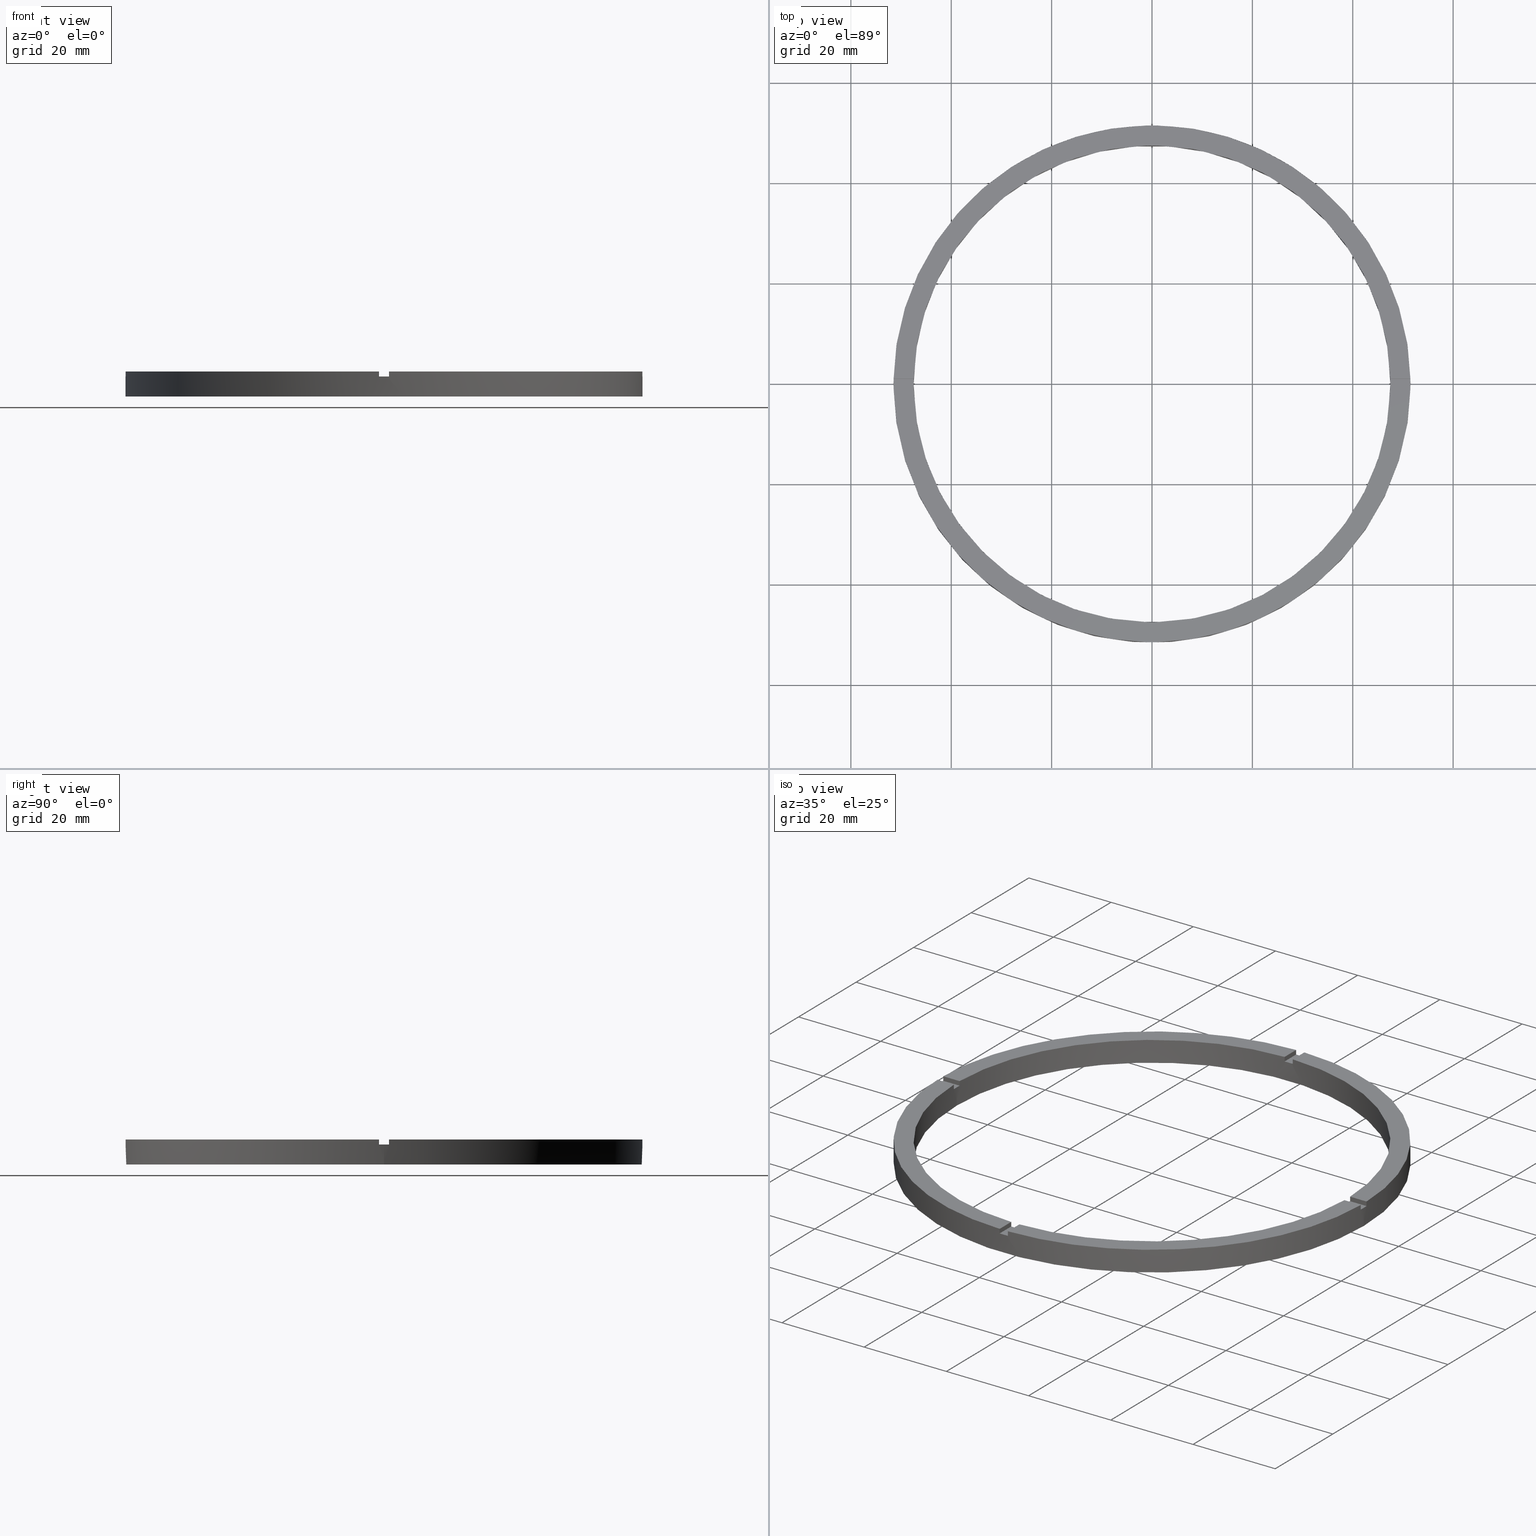
[diagram: canonical four-view strip — front | top / right | iso, engineering-drawing reading convention]
A machine part, canonical four-view strip (front | top / right | iso — engineering-drawing reading convention). The complete STEP part file that produces these views, byte-faithful:
ISO-10303-21;
HEADER;
FILE_DESCRIPTION (( 'STEP AP203' ),
    '1' );
FILE_NAME ('514210.step',
    '2024-12-26T02:48:22',
    ( 'MSI' ),
    ( '' ),
    'SwSTEP 2.0',
    'SolidWorks 2020',
    '' );
FILE_SCHEMA (( 'CONFIG_CONTROL_DESIGN' ));
ENDSEC;

DATA;
#1 = CARTESIAN_POINT ( 'NONE',  ( -1.000000000000026867, 47.48947251760120736, 5.000000000000000000 ) ) ;
#2 = PLANE ( 'NONE',  #697 ) ;
#3 = DIRECTION ( 'NONE',  ( -0.000000000000000000, -0.000000000000000000, -1.000000000000000000 ) ) ;
#4 = EDGE_CURVE ( 'NONE', #698, #675, #157, .T. ) ;
#5 = DIRECTION ( 'NONE',  ( 0.000000000000000000, 0.000000000000000000, 1.000000000000000000 ) ) ;
#6 = EDGE_CURVE ( 'NONE', #706, #110, #432, .T. ) ;
#7 = ADVANCED_FACE ( 'NONE', ( #689 ), #681, .F. ) ;
#8 = CARTESIAN_POINT ( 'NONE',  ( -1.000000000000026867, 47.48947251760120736, 4.000000000000000000 ) ) ;
#9 = CIRCLE ( 'NONE', #555, 51.50000000000000000 ) ;
#10 = CARTESIAN_POINT ( 'NONE',  ( 0.000000000000000000, 0.000000000000000000, 0.000000000000000000 ) ) ;
#11 = AXIS2_PLACEMENT_3D ( 'NONE', #97, #549, #496 ) ;
#12 = LINE ( 'NONE', #259, #25 ) ;
#13 = FACE_OUTER_BOUND ( 'NONE', #205, .T. ) ;
#14 = CIRCLE ( 'NONE', #150, 47.50000000000000711 ) ;
#15 = CIRCLE ( 'NONE', #724, 51.50000000000000000 ) ;
#16 = VECTOR ( 'NONE', #663, 1000.000000000000000 ) ;
#17 = FACE_OUTER_BOUND ( 'NONE', #476, .T. ) ;
#18 = LINE ( 'NONE', #209, #558 ) ;
#19 = PRODUCT_DEFINITION ( 'δ֪', '', #513, #270 ) ;
#20 = LINE ( 'NONE', #373, #16 ) ;
#21 = LINE ( 'NONE', #189, #293 ) ;
#22 = FACE_OUTER_BOUND ( 'NONE', #762, .T. ) ;
#23 = VECTOR ( 'NONE', #202, 1000.000000000000000 ) ;
#24 = CC_DESIGN_PERSON_AND_ORGANIZATION_ASSIGNMENT ( #602, #201, ( #513 ) ) ;
#25 = VECTOR ( 'NONE', #320, 1000.000000000000000 ) ;
#26 = VECTOR ( 'NONE', #5, 1000.000000000000000 ) ;
#27 = CARTESIAN_POINT ( 'NONE',  ( 0.000000000000000000, 0.000000000000000000, 0.000000000000000000 ) ) ;
#28 = FACE_OUTER_BOUND ( 'NONE', #400, .T. ) ;
#29 = VECTOR ( 'NONE', #211, 1000.000000000000000 ) ;
#30 = FACE_OUTER_BOUND ( 'NONE', #459, .T. ) ;
#31 = EDGE_CURVE ( 'NONE', #395, #174, #428, .T. ) ;
#32 = CIRCLE ( 'NONE', #491, 47.50000000000000711 ) ;
#33 = DIRECTION ( 'NONE',  ( -0.000000000000000000, -0.000000000000000000, -1.000000000000000000 ) ) ;
#34 = LINE ( 'NONE', #76, #29 ) ;
#35 = LINE ( 'NONE', #281, #65 ) ;
#36 = EDGE_CURVE ( 'NONE', #675, #258, #152, .T. ) ;
#37 = CIRCLE ( 'NONE', #760, 47.50000000000000711 ) ;
#38 = FACE_OUTER_BOUND ( 'NONE', #457, .T. ) ;
#39 = APPROVAL_STATUS ( 'not_yet_approved' ) ;
#40 = AXIS2_PLACEMENT_3D ( 'NONE', #416, #780, #235 ) ;
#41 = CARTESIAN_POINT ( 'NONE',  ( -47.48947251760120736, -1.000000000000031308, 5.000000000000000000 ) ) ;
#42 = LINE ( 'NONE', #761, #335 ) ;
#43 = LINE ( 'NONE', #542, #586 ) ;
#44 = VECTOR ( 'NONE', #33, 1000.000000000000000 ) ;
#45 = AXIS2_PLACEMENT_3D ( 'NONE', #601, #721, #61 ) ;
#46 = CARTESIAN_POINT ( 'NONE',  ( -51.49029034682169481, -1.000000000000031974, 4.000000000000000000 ) ) ;
#47 = CARTESIAN_POINT ( 'NONE',  ( 47.48947251760120736, -1.000000000000154987, 5.000000000000000000 ) ) ;
#48 = DIRECTION ( 'NONE',  ( -0.000000000000000000, 0.000000000000000000, 1.000000000000000000 ) ) ;
#49 = LINE ( 'NONE', #308, #589 ) ;
#50 = CIRCLE ( 'NONE', #251, 51.50000000000000000 ) ;
#51 = LINE ( 'NONE', #41, #575 ) ;
#52 = CARTESIAN_POINT ( 'NONE',  ( 51.49029034682169481, -1.000000000000154765, 5.000000000000000000 ) ) ;
#53 = LINE ( 'NONE', #1, #577 ) ;
#54 = CARTESIAN_POINT ( 'NONE',  ( 0.9999999999999731326, 47.48947251760120736, 5.000000000000000000 ) ) ;
#55 = CIRCLE ( 'NONE', #392, 47.50000000000000711 ) ;
#56 = CIRCLE ( 'NONE', #509, 47.50000000000000711 ) ;
#57 = LINE ( 'NONE', #777, #591 ) ;
#58 = CARTESIAN_POINT ( 'NONE',  ( 0.000000000000000000, 0.000000000000000000, 5.000000000000000000 ) ) ;
#59 = CIRCLE ( 'NONE', #285, 47.50000000000000711 ) ;
#60 = APPLICATION_CONTEXT ( 'configuration controlled 3d designs of mechanical parts and assemblies' ) ;
#61 = DIRECTION ( 'NONE',  ( 1.000000000000000000, 0.000000000000000000, 0.000000000000000000 ) ) ;
#62 = DIRECTION ( 'NONE',  ( 1.000000000000000000, 0.000000000000000000, 0.000000000000000000 ) ) ;
#63 = LINE ( 'NONE', #409, #64 ) ;
#64 = VECTOR ( 'NONE', #234, 1000.000000000000000 ) ;
#65 = VECTOR ( 'NONE', #372, 1000.000000000000000 ) ;
#66 = DIRECTION ( 'NONE',  ( 1.000000000000000000, 0.000000000000000000, 0.000000000000000000 ) ) ;
#67 = CIRCLE ( 'NONE', #631, 47.50000000000000711 ) ;
#68 = LINE ( 'NONE', #401, #338 ) ;
#69 = CARTESIAN_POINT ( 'NONE',  ( -51.49029034682169481, 0.9999999999999681366, 5.000000000000000000 ) ) ;
#70 = EDGE_CURVE ( 'NONE', #110, #528, #227, .T. ) ;
#71 = VECTOR ( 'NONE', #537, 1000.000000000000000 ) ;
#72 = VECTOR ( 'NONE', #738, 1000.000000000000000 ) ;
#73 = CC_DESIGN_PERSON_AND_ORGANIZATION_ASSIGNMENT ( #608, #309, ( #19 ) ) ;
#74 = DIRECTION ( 'NONE',  ( -0.000000000000000000, -0.000000000000000000, -1.000000000000000000 ) ) ;
#75 = DIRECTION ( 'NONE',  ( 0.000000000000000000, -0.000000000000000000, 1.000000000000000000 ) ) ;
#76 = CARTESIAN_POINT ( 'NONE',  ( -1.000000000000157652, -41.50000000000017764, 4.000000000000000000 ) ) ;
#77 = LOCAL_TIME ( 10, 48, 22.00000000000000000, #599 ) ;
#78 = COORDINATED_UNIVERSAL_TIME_OFFSET ( 8, 0, .AHEAD. ) ;
#79 = CC_DESIGN_APPROVAL ( #728, ( #19 ) ) ;
#80 = DIRECTION ( 'NONE',  ( -0.000000000000000000, 0.000000000000000000, 1.000000000000000000 ) ) ;
#81 = ORGANIZATION ( 'δָ��', 'δָ��', '' ) ;
#82 = DATE_AND_TIME ( #351, #342 ) ;
#83 = APPROVAL_PERSON_ORGANIZATION ( #352, #728, #98 ) ;
#84 = PERSON_AND_ORGANIZATION ( #274, #81 ) ;
#85 = EDGE_CURVE ( 'NONE', #381, #463, #228, .T. ) ;
#86 = LOCAL_TIME ( 10, 48, 22.00000000000000000, #78 ) ;
#87 = ADVANCED_FACE ( 'NONE', ( #271 ), #756, .T. ) ;
#88 = AXIS2_PLACEMENT_3D ( 'NONE', #627, #684, #327 ) ;
#89 = EDGE_CURVE ( 'NONE', #512, #117, #9, .T. ) ;
#90 = CARTESIAN_POINT ( 'NONE',  ( -41.50000000000018474, 0.9999999999999701350, 5.000000000000000000 ) ) ;
#91 = DIRECTION ( 'NONE',  ( -0.000000000000000000, -0.000000000000000000, -1.000000000000000000 ) ) ;
#92 = EDGE_CURVE ( 'NONE', #395, #638, #553, .T. ) ;
#93 = DIRECTION ( 'NONE',  ( -0.000000000000000000, -0.000000000000000000, -1.000000000000000000 ) ) ;
#94 = DIRECTION ( 'NONE',  ( 1.000000000000000000, 1.951563910473907735E-16, -0.000000000000000000 ) ) ;
#95 = CARTESIAN_POINT ( 'NONE',  ( -47.48947251760120736, -1.000000000000031308, 5.000000000000000000 ) ) ;
#96 = PRODUCT_RELATED_PRODUCT_CATEGORY ( 'detail', '', ( #573 ) ) ;
#97 = CARTESIAN_POINT ( 'NONE',  ( 0.000000000000000000, 0.000000000000000000, 5.000000000000000000 ) ) ;
#98 = APPROVAL_ROLE ( '' ) ;
#99 = AXIS2_PLACEMENT_3D ( 'NONE', #246, #288, #297 ) ;
#100 = CARTESIAN_POINT ( 'NONE',  ( 47.50000000000000711, 5.817072295949929004E-15, 4.000000000000000000 ) ) ;
#101 = CARTESIAN_POINT ( 'NONE',  ( 0.000000000000000000, 0.000000000000000000, 5.000000000000000000 ) ) ;
#102 = ORIENTED_EDGE ( 'NONE', *, *, #465, .F. ) ;
#103 = DIRECTION ( 'NONE',  ( 1.000000000000000000, 0.000000000000000000, 0.000000000000000000 ) ) ;
#104 = AXIS2_PLACEMENT_3D ( 'NONE', #584, #282, #482 ) ;
#105 = APPROVAL_ROLE ( '' ) ;
#106 = ORIENTED_EDGE ( 'NONE', *, *, #641, .F. ) ;
#107 = PLANE ( 'NONE',  #518 ) ;
#108 = ORIENTED_EDGE ( 'NONE', *, *, #252, .F. ) ;
#109 = ORIENTED_EDGE ( 'NONE', *, *, #92, .T. ) ;
#110 = VERTEX_POINT ( 'NONE', #243 ) ;
#111 = DIRECTION ( 'NONE',  ( 1.000000000000000000, 0.000000000000000000, 0.000000000000000000 ) ) ;
#112 = CARTESIAN_POINT ( 'NONE',  ( 0.9999999999998436806, -51.49029034682169481, 4.000000000000000000 ) ) ;
#113 = APPROVAL_STATUS ( 'not_yet_approved' ) ;
#114 = ORIENTED_EDGE ( 'NONE', *, *, #376, .F. ) ;
#115 = DIRECTION ( 'NONE',  ( 1.000000000000000000, 0.000000000000000000, 0.000000000000000000 ) ) ;
#116 = CARTESIAN_POINT ( 'NONE',  ( 41.49999999999998579, -1.000000000000155431, 4.000000000000000000 ) ) ;
#117 = VERTEX_POINT ( 'NONE', #261 ) ;
#118 = ORIENTED_EDGE ( 'NONE', *, *, #617, .T. ) ;
#119 = ORIENTED_EDGE ( 'NONE', *, *, #782, .F. ) ;
#120 = DIRECTION ( 'NONE',  ( 1.000000000000000000, 1.301042606982605074E-16, 0.000000000000000000 ) ) ;
#121 = EDGE_LOOP ( 'NONE', ( #630, #109, #687, #471 ) ) ;
#122 = ORIENTED_EDGE ( 'NONE', *, *, #759, .T. ) ;
#123 = ORIENTED_EDGE ( 'NONE', *, *, #641, .T. ) ;
#124 = ORIENTED_EDGE ( 'NONE', *, *, #347, .F. ) ;
#125 = CARTESIAN_POINT ( 'NONE',  ( 51.50000000000000000, 6.306931015608868807E-15, 4.000000000000000000 ) ) ;
#126 = ORIENTED_EDGE ( 'NONE', *, *, #458, .F. ) ;
#127 = ADVANCED_FACE ( 'NONE', ( #30 ), #623, .F. ) ;
#128 = VERTEX_POINT ( 'NONE', #751 ) ;
#129 = ORIENTED_EDGE ( 'NONE', *, *, #366, .T. ) ;
#130 = ORIENTED_EDGE ( 'NONE', *, *, #656, .F. ) ;
#131 = DIRECTION ( 'NONE',  ( 1.000000000000000000, 0.000000000000000000, 0.000000000000000000 ) ) ;
#132 = ORIENTED_EDGE ( 'NONE', *, *, #759, .F. ) ;
#133 = VERTEX_POINT ( 'NONE', #210 ) ;
#134 = ADVANCED_FACE ( 'NONE', ( #568 ), #467, .F. ) ;
#135 = AXIS2_PLACEMENT_3D ( 'NONE', #632, #48, #349 ) ;
#136 = EDGE_CURVE ( 'NONE', #402, #110, #554, .T. ) ;
#137 = AXIS2_PLACEMENT_3D ( 'NONE', #180, #655, #532 ) ;
#138 = ORIENTED_EDGE ( 'NONE', *, *, #782, .T. ) ;
#139 = VERTEX_POINT ( 'NONE', #46 ) ;
#140 = AXIS2_PLACEMENT_3D ( 'NONE', #213, #80, #131 ) ;
#141 = EDGE_LOOP ( 'NONE', ( #124, #472, #193, #197 ) ) ;
#142 = EDGE_LOOP ( 'NONE', ( #415, #123, #468, #404 ) ) ;
#143 = ORIENTED_EDGE ( 'NONE', *, *, #779, .T. ) ;
#144 = CARTESIAN_POINT ( 'NONE',  ( 41.49999999999998579, 0.9999999999998445688, 4.000000000000000000 ) ) ;
#145 = CARTESIAN_POINT ( 'NONE',  ( 0.9999999999998430145, -47.48947251760121446, 4.000000000000000000 ) ) ;
#146 = ORIENTED_EDGE ( 'NONE', *, *, #265, .F. ) ;
#147 = EDGE_LOOP ( 'NONE', ( #388, #699, #119, #741 ) ) ;
#148 = EDGE_CURVE ( 'NONE', #495, #766, #567, .T. ) ;
#149 = ORIENTED_EDGE ( 'NONE', *, *, #36, .F. ) ;
#150 = AXIS2_PLACEMENT_3D ( 'NONE', #192, #769, #256 ) ;
#151 = ORIENTED_EDGE ( 'NONE', *, *, #6, .F. ) ;
#152 = LINE ( 'NONE', #172, #430 ) ;
#153 = ORIENTED_EDGE ( 'NONE', *, *, #494, .F. ) ;
#154 = CARTESIAN_POINT ( 'NONE',  ( 0.000000000000000000, 0.000000000000000000, 4.000000000000000000 ) ) ;
#155 = DIRECTION ( 'NONE',  ( 0.000000000000000000, 0.000000000000000000, 1.000000000000000000 ) ) ;
#156 = EDGE_CURVE ( 'NONE', #403, #117, #571, .T. ) ;
#157 = LINE ( 'NONE', #47, #159 ) ;
#158 = ORIENTED_EDGE ( 'NONE', *, *, #635, .T. ) ;
#159 = VECTOR ( 'NONE', #165, 1000.000000000000000 ) ;
#160 = VERTEX_POINT ( 'NONE', #100 ) ;
#161 = AXIS2_PLACEMENT_3D ( 'NONE', #253, #612, #447 ) ;
#162 = DIRECTION ( 'NONE',  ( -0.000000000000000000, -1.000000000000000000, -0.000000000000000000 ) ) ;
#163 = PERSON_AND_ORGANIZATION ( #274, #81 ) ;
#164 = LOCAL_TIME ( 10, 48, 22.00000000000000000, #449 ) ;
#165 = DIRECTION ( 'NONE',  ( 0.000000000000000000, 0.000000000000000000, 1.000000000000000000 ) ) ;
#166 = CARTESIAN_POINT ( 'NONE',  ( -1.000000000000156986, -47.48947251760120736, 4.000000000000000000 ) ) ;
#167 = DATE_AND_TIME ( #168, #696 ) ;
#168 = CALENDAR_DATE ( 2024, 26, 12 ) ;
#169 = ORIENTED_EDGE ( 'NONE', *, *, #411, .T. ) ;
#170 = CARTESIAN_POINT ( 'NONE',  ( -1.000000000000156986, -47.48947251760120736, 5.000000000000000000 ) ) ;
#171 = ORIENTED_EDGE ( 'NONE', *, *, #636, .T. ) ;
#172 = CARTESIAN_POINT ( 'NONE',  ( 41.49999999999998579, -1.000000000000155431, 5.000000000000000000 ) ) ;
#173 = DIRECTION ( 'NONE',  ( 1.000000000000000000, 0.000000000000000000, 0.000000000000000000 ) ) ;
#174 = VERTEX_POINT ( 'NONE', #551 ) ;
#175 = CC_DESIGN_PERSON_AND_ORGANIZATION_ASSIGNMENT ( #605, #365, ( #513 ) ) ;
#176 = EDGE_LOOP ( 'NONE', ( #169, #386, #686, #658, #221, #709 ) ) ;
#177 = ORIENTED_EDGE ( 'NONE', *, *, #231, .F. ) ;
#178 = DIRECTION ( 'NONE',  ( 0.000000000000000000, 0.000000000000000000, 1.000000000000000000 ) ) ;
#179 = DIRECTION ( 'NONE',  ( -1.000000000000000000, 0.000000000000000000, 0.000000000000000000 ) ) ;
#180 = CARTESIAN_POINT ( 'NONE',  ( -1.000000000000157652, -41.50000000000017764, 4.000000000000000000 ) ) ;
#181 = ORIENTED_EDGE ( 'NONE', *, *, #4, .F. ) ;
#182 = DIRECTION ( 'NONE',  ( 0.000000000000000000, 0.000000000000000000, 1.000000000000000000 ) ) ;
#183 = DIRECTION ( 'NONE',  ( 0.000000000000000000, 0.000000000000000000, 1.000000000000000000 ) ) ;
#184 = ORIENTED_EDGE ( 'NONE', *, *, #614, .F. ) ;
#185 = ORIENTED_EDGE ( 'NONE', *, *, #520, .F. ) ;
#186 = EDGE_CURVE ( 'NONE', #676, #523, #283, .T. ) ;
#187 = ORIENTED_EDGE ( 'NONE', *, *, #148, .F. ) ;
#188 = CARTESIAN_POINT ( 'NONE',  ( 0.000000000000000000, 0.000000000000000000, 5.000000000000000000 ) ) ;
#189 = CARTESIAN_POINT ( 'NONE',  ( 41.49999999999998579, 0.9999999999998445688, 5.000000000000000000 ) ) ;
#190 = AXIS2_PLACEMENT_3D ( 'NONE', #289, #359, #781 ) ;
#191 = DIRECTION ( 'NONE',  ( 1.000000000000000000, 0.000000000000000000, 0.000000000000000000 ) ) ;
#192 = CARTESIAN_POINT ( 'NONE',  ( 0.000000000000000000, 0.000000000000000000, 4.000000000000000000 ) ) ;
#193 = ORIENTED_EDGE ( 'NONE', *, *, #779, .F. ) ;
#194 = CARTESIAN_POINT ( 'NONE',  ( 0.000000000000000000, 0.000000000000000000, 5.000000000000000000 ) ) ;
#195 = ORIENTED_EDGE ( 'NONE', *, *, #731, .F. ) ;
#196 = ORIENTED_EDGE ( 'NONE', *, *, #755, .F. ) ;
#197 = ORIENTED_EDGE ( 'NONE', *, *, #252, .T. ) ;
#198 = DIRECTION ( 'NONE',  ( 1.000000000000000000, 0.000000000000000000, -0.000000000000000000 ) ) ;
#199 = AXIS2_PLACEMENT_3D ( 'NONE', #247, #435, #746 ) ;
#200 = DIRECTION ( 'NONE',  ( 1.000000000000000000, 0.000000000000000000, 0.000000000000000000 ) ) ;
#201 = PERSON_AND_ORGANIZATION_ROLE ( 'creator' ) ;
#202 = DIRECTION ( 'NONE',  ( -0.000000000000000000, -0.000000000000000000, -1.000000000000000000 ) ) ;
#203 = ORIENTED_EDGE ( 'NONE', *, *, #292, .T. ) ;
#204 = ORIENTED_EDGE ( 'NONE', *, *, #231, .T. ) ;
#205 = EDGE_LOOP ( 'NONE', ( #143, #470, #222, #420 ) ) ;
#206 = ADVANCED_FACE ( 'NONE', ( #296 ), #236, .F. ) ;
#207 = ORIENTED_EDGE ( 'NONE', *, *, #561, .T. ) ;
#208 = PLANE ( 'NONE',  #140 ) ;
#209 = CARTESIAN_POINT ( 'NONE',  ( -41.50000000000018474, 0.9999999999999701350, 4.000000000000000000 ) ) ;
#210 = CARTESIAN_POINT ( 'NONE',  ( -51.49029034682169481, -1.000000000000031974, 5.000000000000000000 ) ) ;
#211 = DIRECTION ( 'NONE',  ( 1.301042606982605074E-16, -1.000000000000000000, 0.000000000000000000 ) ) ;
#212 = EDGE_CURVE ( 'NONE', #706, #128, #14, .T. ) ;
#213 = CARTESIAN_POINT ( 'NONE',  ( 0.000000000000000000, 0.000000000000000000, 4.000000000000000000 ) ) ;
#214 = CARTESIAN_POINT ( 'NONE',  ( -41.50000000000018474, 0.9999999999999701350, 4.000000000000000000 ) ) ;
#215 = DIRECTION ( 'NONE',  ( 0.000000000000000000, 0.000000000000000000, 1.000000000000000000 ) ) ;
#216 = ORIENTED_EDGE ( 'NONE', *, *, #92, .F. ) ;
#217 = VERTEX_POINT ( 'NONE', #298 ) ;
#218 = ORIENTED_EDGE ( 'NONE', *, *, #89, .T. ) ;
#219 = ADVANCED_FACE ( 'NONE', ( #28 ), #773, .F. ) ;
#220 = CC_DESIGN_PERSON_AND_ORGANIZATION_ASSIGNMENT ( #84, #654, ( #573 ) ) ;
#221 = ORIENTED_EDGE ( 'NONE', *, *, #212, .F. ) ;
#222 = ORIENTED_EDGE ( 'NONE', *, *, #583, .F. ) ;
#223 = DIRECTION ( 'NONE',  ( -1.000000000000000000, -1.951563910473907735E-16, 0.000000000000000000 ) ) ;
#224 = SECURITY_CLASSIFICATION ( '', '', #647 ) ;
#225 = DIRECTION ( 'NONE',  ( -0.000000000000000000, 0.000000000000000000, 1.000000000000000000 ) ) ;
#226 = DIRECTION ( 'NONE',  ( 0.000000000000000000, 0.000000000000000000, 1.000000000000000000 ) ) ;
#227 = LINE ( 'NONE', #90, #752 ) ;
#228 = LINE ( 'NONE', #144, #295 ) ;
#229 = AXIS2_PLACEMENT_3D ( 'NONE', #214, #328, #516 ) ;
#230 = DIRECTION ( 'NONE',  ( 0.000000000000000000, 0.000000000000000000, 1.000000000000000000 ) ) ;
#231 = EDGE_CURVE ( 'NONE', #395, #389, #276, .T. ) ;
#232 = AXIS2_PLACEMENT_3D ( 'NONE', #10, #375, #369 ) ;
#233 = DIRECTION ( 'NONE',  ( 0.000000000000000000, 0.000000000000000000, 1.000000000000000000 ) ) ;
#234 = DIRECTION ( 'NONE',  ( -0.000000000000000000, -0.000000000000000000, -1.000000000000000000 ) ) ;
#235 = DIRECTION ( 'NONE',  ( 1.000000000000000000, 0.000000000000000000, 0.000000000000000000 ) ) ;
#236 = PLANE ( 'NONE',  #190 ) ;
#237 = EDGE_CURVE ( 'NONE', #524, #399, #20, .T. ) ;
#238 = DIRECTION ( 'NONE',  ( 0.000000000000000000, 1.000000000000000000, 0.000000000000000000 ) ) ;
#239 = ORIENTED_EDGE ( 'NONE', *, *, #716, .T. ) ;
#240 = DIRECTION ( 'NONE',  ( -0.000000000000000000, -0.000000000000000000, -1.000000000000000000 ) ) ;
#241 = DIRECTION ( 'NONE',  ( 0.000000000000000000, 0.000000000000000000, 1.000000000000000000 ) ) ;
#242 = MECHANICAL_CONTEXT ( 'NONE', #314, 'mechanical' ) ;
#243 = CARTESIAN_POINT ( 'NONE',  ( -47.48947251760120736, 0.9999999999999688027, 5.000000000000000000 ) ) ;
#244 = DIRECTION ( 'NONE',  ( 1.000000000000000000, 1.951563910473907735E-16, -0.000000000000000000 ) ) ;
#245 = EDGE_LOOP ( 'NONE', ( #748, #129, #130, #680, #216, #204, #645, #499, #151, #726, #122, #485 ) ) ;
#246 = CARTESIAN_POINT ( 'NONE',  ( -41.50000000000018474, -1.000000000000029976, 4.000000000000000000 ) ) ;
#247 = CARTESIAN_POINT ( 'NONE',  ( 0.000000000000000000, 0.000000000000000000, 5.000000000000000000 ) ) ;
#248 = APPLICATION_PROTOCOL_DEFINITION ( 'international standard', 'config_control_design', 1994, #314 ) ;
#249 = CARTESIAN_POINT ( 'NONE',  ( 0.000000000000000000, 0.000000000000000000, 0.000000000000000000 ) ) ;
#250 = DIRECTION ( 'NONE',  ( 1.000000000000000000, 0.000000000000000000, 0.000000000000000000 ) ) ;
#251 = AXIS2_PLACEMENT_3D ( 'NONE', #27, #648, #413 ) ;
#252 = EDGE_CURVE ( 'NONE', #133, #394, #290, .T. ) ;
#253 = CARTESIAN_POINT ( 'NONE',  ( 0.9999999999999731326, 41.49999999999999289, 4.000000000000000000 ) ) ;
#254 = DIRECTION ( 'NONE',  ( -0.000000000000000000, -0.000000000000000000, -1.000000000000000000 ) ) ;
#255 =( NAMED_UNIT ( * ) SI_UNIT ( $, .STERADIAN. ) SOLID_ANGLE_UNIT ( ) );
#256 = DIRECTION ( 'NONE',  ( 1.000000000000000000, 0.000000000000000000, 0.000000000000000000 ) ) ;
#257 = CARTESIAN_POINT ( 'NONE',  ( -1.000000000000156319, -51.49029034682169481, 5.000000000000000000 ) ) ;
#258 = VERTEX_POINT ( 'NONE', #550 ) ;
#259 = CARTESIAN_POINT ( 'NONE',  ( 0.9999999999998423483, -41.50000000000017764, 4.000000000000000000 ) ) ;
#260 = CARTESIAN_POINT ( 'NONE',  ( 0.000000000000000000, 0.000000000000000000, 5.000000000000000000 ) ) ;
#261 = CARTESIAN_POINT ( 'NONE',  ( 51.50000000000000000, 6.306931015608868807E-15, 0.000000000000000000 ) ) ;
#262 = EDGE_LOOP ( 'NONE', ( #185, #725, #421, #382 ) ) ;
#263 = AXIS2_PLACEMENT_3D ( 'NONE', #488, #230, #483 ) ;
#264 = VERTEX_POINT ( 'NONE', #112 ) ;
#265 = EDGE_CURVE ( 'NONE', #217, #427, #21, .T. ) ;
#266 = ADVANCED_FACE ( 'NONE', ( #17 ), #284, .F. ) ;
#267 = ADVANCED_FACE ( 'NONE', ( #278 ), #546, .T. ) ;
#268 = DIRECTION ( 'NONE',  ( -1.000000000000000000, -6.505213034913025371E-17, -0.000000000000000000 ) ) ;
#269 = CARTESIAN_POINT ( 'NONE',  ( 0.9999999999999731326, 47.48947251760120736, 5.000000000000000000 ) ) ;
#270 = DESIGN_CONTEXT ( 'detailed design', #60, 'design' ) ;
#271 = FACE_OUTER_BOUND ( 'NONE', #176, .T. ) ;
#272 = PLANE ( 'NONE',  #774 ) ;
#273 = CYLINDRICAL_SURFACE ( 'NONE', #753, 51.50000000000000000 ) ;
#274 = PERSON ( 'δָ��', 'δָ��', 'δָ��', ('δָ��'), ('δָ��'), ('δָ��') ) ;
#275 = LINE ( 'NONE', #52, #277 ) ;
#276 = CIRCLE ( 'NONE', #294, 47.50000000000000711 ) ;
#277 = VECTOR ( 'NONE', #600, 1000.000000000000000 ) ;
#278 = FACE_OUTER_BOUND ( 'NONE', #515, .T. ) ;
#279 = VECTOR ( 'NONE', #677, 1000.000000000000000 ) ;
#280 = LINE ( 'NONE', #69, #26 ) ;
#281 = CARTESIAN_POINT ( 'NONE',  ( 0.9999999999998423483, -41.50000000000017764, 5.000000000000000000 ) ) ;
#282 = DIRECTION ( 'NONE',  ( -0.000000000000000000, -0.000000000000000000, -1.000000000000000000 ) ) ;
#283 = LINE ( 'NONE', #615, #540 ) ;
#284 = CYLINDRICAL_SURFACE ( 'NONE', #757, 47.50000000000000711 ) ;
#285 = AXIS2_PLACEMENT_3D ( 'NONE', #666, #368, #250 ) ;
#286 = FACE_OUTER_BOUND ( 'NONE', #142, .T. ) ;
#287 = FACE_OUTER_BOUND ( 'NONE', #147, .T. ) ;
#288 = DIRECTION ( 'NONE',  ( 1.951563910473907735E-16, -1.000000000000000000, 0.000000000000000000 ) ) ;
#289 = CARTESIAN_POINT ( 'NONE',  ( -1.000000000000026867, 41.49999999999999289, 4.000000000000000000 ) ) ;
#290 = CIRCLE ( 'NONE', #692, 51.50000000000000000 ) ;
#291 = CARTESIAN_POINT ( 'NONE',  ( 47.48947251760120736, -1.000000000000154987, 4.000000000000000000 ) ) ;
#292 = EDGE_CURVE ( 'NONE', #217, #433, #562, .T. ) ;
#293 = VECTOR ( 'NONE', #501, 1000.000000000000000 ) ;
#294 = AXIS2_PLACEMENT_3D ( 'NONE', #543, #75, #613 ) ;
#295 = VECTOR ( 'NONE', #268, 1000.000000000000000 ) ;
#296 = FACE_OUTER_BOUND ( 'NONE', #423, .T. ) ;
#297 = DIRECTION ( 'NONE',  ( 1.000000000000000000, 1.951563910473907735E-16, 0.000000000000000000 ) ) ;
#298 = CARTESIAN_POINT ( 'NONE',  ( 51.49029034682169481, 0.9999999999998452349, 5.000000000000000000 ) ) ;
#299 = CARTESIAN_POINT ( 'NONE',  ( 0.9999999999998430145, -47.48947251760121446, 5.000000000000000000 ) ) ;
#300 = EDGE_CURVE ( 'NONE', #706, #414, #18, .T. ) ;
#301 = CIRCLE ( 'NONE', #370, 47.50000000000000711 ) ;
#302 = DIRECTION ( 'NONE',  ( 0.000000000000000000, 0.000000000000000000, 1.000000000000000000 ) ) ;
#303 = ADVANCED_FACE ( 'NONE', ( #286 ), #2, .T. ) ;
#304 = LINE ( 'NONE', #620, #307 ) ;
#305 = AXIS2_PLACEMENT_3D ( 'NONE', #662, #233, #198 ) ;
#306 = LINE ( 'NONE', #671, #541 ) ;
#307 = VECTOR ( 'NONE', #552, 1000.000000000000000 ) ;
#308 = CARTESIAN_POINT ( 'NONE',  ( 47.50000000000000711, 5.817072295949929004E-15, 5.000000000000000000 ) ) ;
#309 = PERSON_AND_ORGANIZATION_ROLE ( 'creator' ) ;
#310 = DIRECTION ( 'NONE',  ( 1.000000000000000000, 6.505213034913025371E-17, 0.000000000000000000 ) ) ;
#311 = CIRCLE ( 'NONE', #469, 51.50000000000000000 ) ;
#312 = VECTOR ( 'NONE', #93, 1000.000000000000000 ) ;
#313 = CARTESIAN_POINT ( 'NONE',  ( 47.50000000000000711, 5.817072295949929004E-15, 0.000000000000000000 ) ) ;
#314 = APPLICATION_CONTEXT ( 'configuration controlled 3d designs of mechanical parts and assemblies' ) ;
#315 = FACE_OUTER_BOUND ( 'NONE', #262, .T. ) ;
#316 = DIRECTION ( 'NONE',  ( 1.000000000000000000, 0.000000000000000000, 0.000000000000000000 ) ) ;
#317 = VECTOR ( 'NONE', #238, 1000.000000000000000 ) ;
#318 = LINE ( 'NONE', #639, #317 ) ;
#319 = FACE_OUTER_BOUND ( 'NONE', #649, .T. ) ;
#320 = DIRECTION ( 'NONE',  ( -1.301042606982605074E-16, 1.000000000000000000, -0.000000000000000000 ) ) ;
#321 = CIRCLE ( 'NONE', #539, 51.50000000000000000 ) ;
#322 = CARTESIAN_POINT ( 'NONE',  ( 51.49029034682169481, 0.9999999999998452349, 4.000000000000000000 ) ) ;
#323 = VECTOR ( 'NONE', #708, 1000.000000000000000 ) ;
#324 = CC_DESIGN_DATE_AND_TIME_ASSIGNMENT ( #167, #487, ( #224 ) ) ;
#325 = ADVANCED_FACE ( 'NONE', ( #563, #565 ), #380, .F. ) ;
#326 = LINE ( 'NONE', #764, #333 ) ;
#327 = DIRECTION ( 'NONE',  ( 1.000000000000000000, 0.000000000000000000, -0.000000000000000000 ) ) ;
#328 = DIRECTION ( 'NONE',  ( -1.951563910473907735E-16, 1.000000000000000000, 0.000000000000000000 ) ) ;
#329 = AXIS2_PLACEMENT_3D ( 'NONE', #530, #155, #625 ) ;
#330 = LINE ( 'NONE', #657, #312 ) ;
#331 = EDGE_CURVE ( 'NONE', #174, #433, #306, .T. ) ;
#332 = ADVANCED_FACE ( 'NONE', ( #544 ), #783, .T. ) ;
#333 = VECTOR ( 'NONE', #162, 1000.000000000000000 ) ;
#334 = EDGE_CURVE ( 'NONE', #174, #399, #559, .T. ) ;
#335 = VECTOR ( 'NONE', #91, 1000.000000000000000 ) ;
#336 = FACE_OUTER_BOUND ( 'NONE', #121, .T. ) ;
#337 = LINE ( 'NONE', #417, #71 ) ;
#338 = VECTOR ( 'NONE', #94, 1000.000000000000000 ) ;
#339 = LINE ( 'NONE', #723, #44 ) ;
#340 = APPROVAL_DATE_TIME ( #610, #678 ) ;
#341 = DIRECTION ( 'NONE',  ( 1.000000000000000000, 0.000000000000000000, -0.000000000000000000 ) ) ;
#342 = LOCAL_TIME ( 10, 48, 22.00000000000000000, #344 ) ;
#343 = DIRECTION ( 'NONE',  ( 0.000000000000000000, 0.000000000000000000, 1.000000000000000000 ) ) ;
#344 = COORDINATED_UNIVERSAL_TIME_OFFSET ( 8, 0, .AHEAD. ) ;
#345 = CALENDAR_DATE ( 2024, 26, 12 ) ;
#346 = ADVANCED_BREP_SHAPE_REPRESENTATION ( '514210', ( #597, #356 ), #455 ) ;
#347 = EDGE_CURVE ( 'NONE', #523, #394, #304, .T. ) ;
#348 = APPROVAL_DATE_TIME ( #82, #728 ) ;
#349 = DIRECTION ( 'NONE',  ( 1.000000000000000000, 0.000000000000000000, 0.000000000000000000 ) ) ;
#350 = PERSON_AND_ORGANIZATION ( #274, #81 ) ;
#351 = CALENDAR_DATE ( 2024, 26, 12 ) ;
#352 = PERSON_AND_ORGANIZATION ( #274, #81 ) ;
#353 = PERSON_AND_ORGANIZATION ( #274, #81 ) ;
#354 = CARTESIAN_POINT ( 'NONE',  ( -47.48947251760120736, -1.000000000000031308, 4.000000000000000000 ) ) ;
#355 = CARTESIAN_POINT ( 'NONE',  ( 0.9999999999998430145, -47.48947251760121446, 5.000000000000000000 ) ) ;
#356 = AXIS2_PLACEMENT_3D ( 'NONE', #775, #588, #191 ) ;
#357 = DIRECTION ( 'NONE',  ( -1.000000000000000000, -6.505213034913025371E-17, 0.000000000000000000 ) ) ;
#358 = PLANE ( 'NONE',  #161 ) ;
#359 = DIRECTION ( 'NONE',  ( -1.000000000000000000, 0.000000000000000000, 0.000000000000000000 ) ) ;
#360 = DIRECTION ( 'NONE',  ( -6.505213034913025371E-17, 1.000000000000000000, 0.000000000000000000 ) ) ;
#361 = DIRECTION ( 'NONE',  ( -0.000000000000000000, -0.000000000000000000, -1.000000000000000000 ) ) ;
#362 = DIRECTION ( 'NONE',  ( -1.301042606982605074E-16, 1.000000000000000000, 0.000000000000000000 ) ) ;
#363 = EDGE_CURVE ( 'NONE', #637, #394, #570, .T. ) ;
#364 = AXIS2_PLACEMENT_3D ( 'NONE', #508, #668, #557 ) ;
#365 = PERSON_AND_ORGANIZATION_ROLE ( 'design_supplier' ) ;
#366 = EDGE_CURVE ( 'NONE', #160, #463, #32, .T. ) ;
#367 = DIRECTION ( 'NONE',  ( 0.000000000000000000, 0.000000000000000000, 1.000000000000000000 ) ) ;
#368 = DIRECTION ( 'NONE',  ( 0.000000000000000000, 0.000000000000000000, 1.000000000000000000 ) ) ;
#369 = DIRECTION ( 'NONE',  ( 1.000000000000000000, 0.000000000000000000, -0.000000000000000000 ) ) ;
#370 = AXIS2_PLACEMENT_3D ( 'NONE', #564, #178, #111 ) ;
#371 = PRODUCT_DEFINITION_SHAPE ( 'NONE', 'NONE',  #19 ) ;
#372 = DIRECTION ( 'NONE',  ( -1.301042606982605074E-16, 1.000000000000000000, -0.000000000000000000 ) ) ;
#373 = CARTESIAN_POINT ( 'NONE',  ( -1.000000000000026867, 51.49029034682169481, 5.000000000000000000 ) ) ;
#374 = DATE_TIME_ROLE ( 'creation_date' ) ;
#375 = DIRECTION ( 'NONE',  ( 0.000000000000000000, 0.000000000000000000, 1.000000000000000000 ) ) ;
#376 = EDGE_CURVE ( 'NONE', #414, #528, #280, .T. ) ;
#377 = CARTESIAN_POINT ( 'NONE',  ( 0.9999999999998436806, -51.49029034682169481, 5.000000000000000000 ) ) ;
#378 = EDGE_CURVE ( 'NONE', #676, #637, #34, .T. ) ;
#379 = ORIENTED_EDGE ( 'NONE', *, *, #408, .T. ) ;
#380 = PLANE ( 'NONE',  #232 ) ;
#381 = VERTEX_POINT ( 'NONE', #322 ) ;
#382 = ORIENTED_EDGE ( 'NONE', *, *, #461, .F. ) ;
#383 = CARTESIAN_POINT ( 'NONE',  ( -1.000000000000156319, -51.49029034682169481, 5.000000000000000000 ) ) ;
#384 = ORIENTED_EDGE ( 'NONE', *, *, #331, .T. ) ;
#385 = ADVANCED_FACE ( 'NONE', ( #22 ), #526, .T. ) ;
#386 = ORIENTED_EDGE ( 'NONE', *, *, #465, .T. ) ;
#387 = VERTEX_POINT ( 'NONE', #750 ) ;
#388 = ORIENTED_EDGE ( 'NONE', *, *, #694, .T. ) ;
#389 = VERTEX_POINT ( 'NONE', #8 ) ;
#390 = ORIENTED_EDGE ( 'NONE', *, *, #731, .T. ) ;
#391 = ADVANCED_FACE ( 'NONE', ( #287 ), #208, .T. ) ;
#392 = AXIS2_PLACEMENT_3D ( 'NONE', #525, #225, #582 ) ;
#393 = ORIENTED_EDGE ( 'NONE', *, *, #89, .F. ) ;
#394 = VERTEX_POINT ( 'NONE', #383 ) ;
#395 = VERTEX_POINT ( 'NONE', #456 ) ;
#396 = VERTEX_POINT ( 'NONE', #464 ) ;
#397 = CC_DESIGN_SECURITY_CLASSIFICATION ( #224, ( #513 ) ) ;
#398 = DIRECTION ( 'NONE',  ( 1.000000000000000000, 0.000000000000000000, 0.000000000000000000 ) ) ;
#399 = VERTEX_POINT ( 'NONE', #519 ) ;
#400 = EDGE_LOOP ( 'NONE', ( #629, #742, #644, #195 ) ) ;
#401 = CARTESIAN_POINT ( 'NONE',  ( -41.50000000000018474, -1.000000000000029976, 5.000000000000000000 ) ) ;
#402 = VERTEX_POINT ( 'NONE', #514 ) ;
#403 = VERTEX_POINT ( 'NONE', #125 ) ;
#404 = ORIENTED_EDGE ( 'NONE', *, *, #136, .F. ) ;
#405 = EDGE_CURVE ( 'NONE', #264, #766, #12, .T. ) ;
#406 = VERTEX_POINT ( 'NONE', #377 ) ;
#407 = DIRECTION ( 'NONE',  ( 0.000000000000000000, 1.000000000000000000, 0.000000000000000000 ) ) ;
#408 = EDGE_CURVE ( 'NONE', #634, #523, #301, .T. ) ;
#409 = CARTESIAN_POINT ( 'NONE',  ( 0.9999999999998436806, -51.49029034682169481, 5.000000000000000000 ) ) ;
#410 = ORIENTED_EDGE ( 'NONE', *, *, #735, .F. ) ;
#411 = EDGE_CURVE ( 'NONE', #414, #396, #569, .T. ) ;
#412 = AXIS2_PLACEMENT_3D ( 'NONE', #450, #445, #398 ) ;
#413 = DIRECTION ( 'NONE',  ( 1.000000000000000000, 0.000000000000000000, 0.000000000000000000 ) ) ;
#414 = VERTEX_POINT ( 'NONE', #618 ) ;
#415 = ORIENTED_EDGE ( 'NONE', *, *, #621, .F. ) ;
#416 = CARTESIAN_POINT ( 'NONE',  ( 0.000000000000000000, 0.000000000000000000, 4.000000000000000000 ) ) ;
#417 = CARTESIAN_POINT ( 'NONE',  ( -1.000000000000026867, 41.49999999999999289, 5.000000000000000000 ) ) ;
#418 = EDGE_LOOP ( 'NONE', ( #118, #473 ) ) ;
#419 = ORIENTED_EDGE ( 'NONE', *, *, #265, .T. ) ;
#420 = ORIENTED_EDGE ( 'NONE', *, *, #636, .F. ) ;
#421 = ORIENTED_EDGE ( 'NONE', *, *, #36, .T. ) ;
#422 = EDGE_LOOP ( 'NONE', ( #393, #710 ) ) ;
#423 = EDGE_LOOP ( 'NONE', ( #503, #474, #196, #715 ) ) ;
#424 = CARTESIAN_POINT ( 'NONE',  ( 0.000000000000000000, 0.000000000000000000, 0.000000000000000000 ) ) ;
#425 = VECTOR ( 'NONE', #407, 1000.000000000000000 ) ;
#426 = CARTESIAN_POINT ( 'NONE',  ( -47.48947251760120736, 0.9999999999999688027, 4.000000000000000000 ) ) ;
#427 = VERTEX_POINT ( 'NONE', #765 ) ;
#428 = LINE ( 'NONE', #533, #425 ) ;
#429 = ORIENTED_EDGE ( 'NONE', *, *, #292, .F. ) ;
#430 = VECTOR ( 'NONE', #770, 1000.000000000000000 ) ;
#431 = ORIENTED_EDGE ( 'NONE', *, *, #700, .F. ) ;
#432 = LINE ( 'NONE', #763, #679 ) ;
#433 = VERTEX_POINT ( 'NONE', #607 ) ;
#434 = CARTESIAN_POINT ( 'NONE',  ( -51.50000000000000000, 0.000000000000000000, 0.000000000000000000 ) ) ;
#435 = DIRECTION ( 'NONE',  ( 0.000000000000000000, 0.000000000000000000, 1.000000000000000000 ) ) ;
#436 = DIRECTION ( 'NONE',  ( 1.000000000000000000, 0.000000000000000000, 0.000000000000000000 ) ) ;
#437 = ORIENTED_EDGE ( 'NONE', *, *, #486, .T. ) ;
#438 = DATE_AND_TIME ( #451, #164 ) ;
#439 = PLANE ( 'NONE',  #305 ) ;
#440 = CARTESIAN_POINT ( 'NONE',  ( 0.9999999999998423483, -41.50000000000017764, 4.000000000000000000 ) ) ;
#441 = APPLICATION_PROTOCOL_DEFINITION ( 'international standard', 'config_control_design', 1994, #60 ) ;
#442 = APPROVAL_PERSON_ORGANIZATION ( #163, #768, #729 ) ;
#443 = CARTESIAN_POINT ( 'NONE',  ( -51.49029034682169481, 0.9999999999999681366, 5.000000000000000000 ) ) ;
#444 = ADVANCED_FACE ( 'NONE', ( #538 ), #273, .T. ) ;
#445 = DIRECTION ( 'NONE',  ( 0.000000000000000000, -0.000000000000000000, 1.000000000000000000 ) ) ;
#446 = SHAPE_DEFINITION_REPRESENTATION ( #371, #346 ) ;
#447 = DIRECTION ( 'NONE',  ( 0.000000000000000000, 0.000000000000000000, -1.000000000000000000 ) ) ;
#448 = CARTESIAN_POINT ( 'NONE',  ( 0.000000000000000000, 0.000000000000000000, 5.000000000000000000 ) ) ;
#449 = COORDINATED_UNIVERSAL_TIME_OFFSET ( 8, 0, .AHEAD. ) ;
#450 = CARTESIAN_POINT ( 'NONE',  ( 0.000000000000000000, 0.000000000000000000, 4.000000000000000000 ) ) ;
#451 = CALENDAR_DATE ( 2024, 26, 12 ) ;
#452 = AXIS2_PLACEMENT_3D ( 'NONE', #560, #215, #341 ) ;
#453 = CLOSED_SHELL ( 'NONE', ( #266, #267, #303, #682, #511, #332, #325, #444, #7, #460, #127, #87, #219, #134, #391, #693, #566, #517, #206, #522, #385 ) ) ;
#454 = ORIENTED_EDGE ( 'NONE', *, *, #334, .F. ) ;
#455 =( GEOMETRIC_REPRESENTATION_CONTEXT ( 3 ) GLOBAL_UNCERTAINTY_ASSIGNED_CONTEXT ( ( #510 ) ) GLOBAL_UNIT_ASSIGNED_CONTEXT ( ( #703, #758, #255 ) ) REPRESENTATION_CONTEXT ( 'NONE', 'WORKASPACE' ) );
#456 = CARTESIAN_POINT ( 'NONE',  ( 0.9999999999999731326, 47.48947251760120736, 4.000000000000000000 ) ) ;
#457 = EDGE_LOOP ( 'NONE', ( #704, #702, #146, #203 ) ) ;
#458 = EDGE_CURVE ( 'NONE', #387, #403, #15, .T. ) ;
#459 = EDGE_LOOP ( 'NONE', ( #475, #730, #744, #114 ) ) ;
#460 = ADVANCED_FACE ( 'NONE', ( #13 ), #767, .F. ) ;
#461 = EDGE_CURVE ( 'NONE', #387, #258, #275, .T. ) ;
#462 = ORIENTED_EDGE ( 'NONE', *, *, #617, .F. ) ;
#463 = VERTEX_POINT ( 'NONE', #667 ) ;
#464 = CARTESIAN_POINT ( 'NONE',  ( -51.50000000000000000, 0.000000000000000000, 4.000000000000000000 ) ) ;
#465 = EDGE_CURVE ( 'NONE', #396, #139, #593, .T. ) ;
#466 = ORIENTED_EDGE ( 'NONE', *, *, #755, .T. ) ;
#467 = PLANE ( 'NONE',  #137 ) ;
#468 = ORIENTED_EDGE ( 'NONE', *, *, #70, .F. ) ;
#469 = AXIS2_PLACEMENT_3D ( 'NONE', #194, #302, #62 ) ;
#470 = ORIENTED_EDGE ( 'NONE', *, *, #700, .T. ) ;
#471 = ORIENTED_EDGE ( 'NONE', *, *, #331, .F. ) ;
#472 = ORIENTED_EDGE ( 'NONE', *, *, #408, .F. ) ;
#473 = ORIENTED_EDGE ( 'NONE', *, *, #527, .T. ) ;
#474 = ORIENTED_EDGE ( 'NONE', *, *, #489, .T. ) ;
#475 = ORIENTED_EDGE ( 'NONE', *, *, #300, .F. ) ;
#476 = EDGE_LOOP ( 'NONE', ( #672, #437, #462, #132, #490, #431, #379, #661, #138, #187, #737, #181 ) ) ;
#477 = VERTEX_POINT ( 'NONE', #313 ) ;
#478 = DIRECTION ( 'NONE',  ( 1.000000000000000000, 0.000000000000000000, -0.000000000000000000 ) ) ;
#479 = CARTESIAN_POINT ( 'NONE',  ( 41.49999999999998579, 0.9999999999998445688, 4.000000000000000000 ) ) ;
#480 = EDGE_LOOP ( 'NONE', ( #419, #722, #484, #410 ) ) ;
#481 = CC_DESIGN_APPROVAL ( #768, ( #224 ) ) ;
#482 = DIRECTION ( 'NONE',  ( -1.000000000000000000, 0.000000000000000000, 0.000000000000000000 ) ) ;
#483 = DIRECTION ( 'NONE',  ( 1.000000000000000000, 0.000000000000000000, -0.000000000000000000 ) ) ;
#484 = ORIENTED_EDGE ( 'NONE', *, *, #85, .F. ) ;
#485 = ORIENTED_EDGE ( 'NONE', *, *, #527, .F. ) ;
#486 = EDGE_CURVE ( 'NONE', #160, #477, #49, .T. ) ;
#487 = DATE_TIME_ROLE ( 'classification_date' ) ;
#488 = CARTESIAN_POINT ( 'NONE',  ( 0.000000000000000000, 0.000000000000000000, 5.000000000000000000 ) ) ;
#489 = EDGE_CURVE ( 'NONE', #402, #389, #53, .T. ) ;
#490 = ORIENTED_EDGE ( 'NONE', *, *, #547, .T. ) ;
#491 = AXIS2_PLACEMENT_3D ( 'NONE', #616, #743, #316 ) ;
#492 = DIRECTION ( 'NONE',  ( 0.000000000000000000, 0.000000000000000000, 1.000000000000000000 ) ) ;
#493 = DIRECTION ( 'NONE',  ( 1.000000000000000000, 0.000000000000000000, 0.000000000000000000 ) ) ;
#494 = EDGE_CURVE ( 'NONE', #396, #512, #595, .T. ) ;
#495 = VERTEX_POINT ( 'NONE', #355 ) ;
#496 = DIRECTION ( 'NONE',  ( 1.000000000000000000, 0.000000000000000000, 0.000000000000000000 ) ) ;
#497 = AXIS2_PLACEMENT_3D ( 'NONE', #154, #367, #665 ) ;
#498 = CARTESIAN_POINT ( 'NONE',  ( 0.000000000000000000, 0.000000000000000000, 4.000000000000000000 ) ) ;
#499 = ORIENTED_EDGE ( 'NONE', *, *, #136, .T. ) ;
#500 = EDGE_CURVE ( 'NONE', #495, #675, #574, .T. ) ;
#501 = DIRECTION ( 'NONE',  ( -1.000000000000000000, -6.505213034913025371E-17, -0.000000000000000000 ) ) ;
#502 = CARTESIAN_POINT ( 'NONE',  ( 0.000000000000000000, 0.000000000000000000, 5.000000000000000000 ) ) ;
#503 = ORIENTED_EDGE ( 'NONE', *, *, #621, .T. ) ;
#504 = DIRECTION ( 'NONE',  ( 1.000000000000000000, 0.000000000000000000, -0.000000000000000000 ) ) ;
#505 = DIRECTION ( 'NONE',  ( 0.000000000000000000, 0.000000000000000000, 1.000000000000000000 ) ) ;
#506 = APPROVAL_STATUS ( 'not_yet_approved' ) ;
#507 = CARTESIAN_POINT ( 'NONE',  ( -1.000000000000026867, 51.49029034682169481, 5.000000000000000000 ) ) ;
#508 = CARTESIAN_POINT ( 'NONE',  ( 0.000000000000000000, 0.000000000000000000, 5.000000000000000000 ) ) ;
#509 = AXIS2_PLACEMENT_3D ( 'NONE', #609, #343, #173 ) ;
#510 = UNCERTAINTY_MEASURE_WITH_UNIT (LENGTH_MEASURE( 1.000000000000000082E-05 ), #703, 'distance_accuracy_value', 'NONE');
#511 = ADVANCED_FACE ( 'NONE', ( #319 ), #439, .T. ) ;
#512 = VERTEX_POINT ( 'NONE', #434 ) ;
#513 = PRODUCT_DEFINITION_FORMATION_WITH_SPECIFIED_SOURCE ( '�κ�', '', #573, .NOT_KNOWN. ) ;
#514 = CARTESIAN_POINT ( 'NONE',  ( -1.000000000000026867, 47.48947251760120736, 5.000000000000000000 ) ) ;
#515 = EDGE_LOOP ( 'NONE', ( #688, #651, #158, #153, #683, #701, #106, #626, #454, #384, #429, #707 ) ) ;
#516 = DIRECTION ( 'NONE',  ( -1.000000000000000000, -1.951563910473907735E-16, 0.000000000000000000 ) ) ;
#517 = ADVANCED_FACE ( 'NONE', ( #580 ), #734, .T. ) ;
#518 = AXIS2_PLACEMENT_3D ( 'NONE', #116, #736, #310 ) ;
#519 = CARTESIAN_POINT ( 'NONE',  ( -1.000000000000026867, 51.49029034682169481, 4.000000000000000000 ) ) ;
#520 = EDGE_CURVE ( 'NONE', #698, #387, #43, .T. ) ;
#521 = EDGE_CURVE ( 'NONE', #406, #495, #35, .T. ) ;
#522 = ADVANCED_FACE ( 'NONE', ( #336 ), #358, .F. ) ;
#523 = VERTEX_POINT ( 'NONE', #170 ) ;
#524 = VERTEX_POINT ( 'NONE', #507 ) ;
#525 = CARTESIAN_POINT ( 'NONE',  ( 0.000000000000000000, 0.000000000000000000, 4.000000000000000000 ) ) ;
#526 = PLANE ( 'NONE',  #88 ) ;
#527 = EDGE_CURVE ( 'NONE', #477, #673, #37, .T. ) ;
#528 = VERTEX_POINT ( 'NONE', #443 ) ;
#529 = CARTESIAN_POINT ( 'NONE',  ( 47.48947251760120736, -1.000000000000154987, 5.000000000000000000 ) ) ;
#530 = CARTESIAN_POINT ( 'NONE',  ( 0.000000000000000000, 0.000000000000000000, 0.000000000000000000 ) ) ;
#531 = DIRECTION ( 'NONE',  ( -1.000000000000000000, 0.000000000000000000, 0.000000000000000000 ) ) ;
#532 = DIRECTION ( 'NONE',  ( 1.301042606982605074E-16, -1.000000000000000000, 0.000000000000000000 ) ) ;
#533 = CARTESIAN_POINT ( 'NONE',  ( 0.9999999999999731326, 41.49999999999999289, 4.000000000000000000 ) ) ;
#534 = CARTESIAN_POINT ( 'NONE',  ( -47.50000000000000711, 0.000000000000000000, 0.000000000000000000 ) ) ;
#535 = CC_DESIGN_DATE_AND_TIME_ASSIGNMENT ( #598, #374, ( #19 ) ) ;
#536 = CARTESIAN_POINT ( 'NONE',  ( -51.50000000000000000, 0.000000000000000000, 5.000000000000000000 ) ) ;
#537 = DIRECTION ( 'NONE',  ( -0.000000000000000000, -1.000000000000000000, -0.000000000000000000 ) ) ;
#538 = FACE_OUTER_BOUND ( 'NONE', #640, .T. ) ;
#539 = AXIS2_PLACEMENT_3D ( 'NONE', #101, #226, #493 ) ;
#540 = VECTOR ( 'NONE', #669, 1000.000000000000000 ) ;
#541 = VECTOR ( 'NONE', #747, 1000.000000000000000 ) ;
#542 = CARTESIAN_POINT ( 'NONE',  ( 41.49999999999998579, -1.000000000000155431, 4.000000000000000000 ) ) ;
#543 = CARTESIAN_POINT ( 'NONE',  ( 0.000000000000000000, 0.000000000000000000, 4.000000000000000000 ) ) ;
#544 = FACE_OUTER_BOUND ( 'NONE', #141, .T. ) ;
#545 = DIRECTION ( 'NONE',  ( 1.000000000000000000, 0.000000000000000000, 0.000000000000000000 ) ) ;
#546 = CYLINDRICAL_SURFACE ( 'NONE', #364, 51.50000000000000000 ) ;
#547 = EDGE_CURVE ( 'NONE', #128, #720, #59, .T. ) ;
#548 = VECTOR ( 'NONE', #3, 1000.000000000000000 ) ;
#549 = DIRECTION ( 'NONE',  ( 0.000000000000000000, 0.000000000000000000, 1.000000000000000000 ) ) ;
#550 = CARTESIAN_POINT ( 'NONE',  ( 51.49029034682169481, -1.000000000000154765, 5.000000000000000000 ) ) ;
#551 = CARTESIAN_POINT ( 'NONE',  ( 0.9999999999999731326, 51.49029034682169481, 4.000000000000000000 ) ) ;
#552 = DIRECTION ( 'NONE',  ( 1.301042606982605074E-16, -1.000000000000000000, 0.000000000000000000 ) ) ;
#553 = LINE ( 'NONE', #54, #572 ) ;
#554 = CIRCLE ( 'NONE', #45, 47.50000000000000711 ) ;
#555 = AXIS2_PLACEMENT_3D ( 'NONE', #249, #776, #115 ) ;
#556 = DIRECTION ( 'NONE',  ( 0.000000000000000000, 0.000000000000000000, 1.000000000000000000 ) ) ;
#557 = DIRECTION ( 'NONE',  ( -1.000000000000000000, 0.000000000000000000, 0.000000000000000000 ) ) ;
#558 = VECTOR ( 'NONE', #739, 1000.000000000000000 ) ;
#559 = CIRCLE ( 'NONE', #412, 51.50000000000000000 ) ;
#560 = CARTESIAN_POINT ( 'NONE',  ( 0.000000000000000000, 0.000000000000000000, 5.000000000000000000 ) ) ;
#561 = EDGE_CURVE ( 'NONE', #406, #258, #311, .T. ) ;
#562 = CIRCLE ( 'NONE', #199, 51.50000000000000000 ) ;
#563 = FACE_OUTER_BOUND ( 'NONE', #422, .T. ) ;
#564 = CARTESIAN_POINT ( 'NONE',  ( 0.000000000000000000, 0.000000000000000000, 5.000000000000000000 ) ) ;
#565 = FACE_BOUND ( 'NONE', #418, .T. ) ;
#566 = ADVANCED_FACE ( 'NONE', ( #315 ), #107, .F. ) ;
#567 = LINE ( 'NONE', #299, #548 ) ;
#568 = FACE_OUTER_BOUND ( 'NONE', #711, .T. ) ;
#569 = CIRCLE ( 'NONE', #40, 51.50000000000000000 ) ;
#570 = LINE ( 'NONE', #257, #279 ) ;
#571 = LINE ( 'NONE', #664, #23 ) ;
#572 = VECTOR ( 'NONE', #182, 1000.000000000000000 ) ;
#573 = PRODUCT ( '514210', '514210', '', ( #242 ) ) ;
#574 = CIRCLE ( 'NONE', #11, 47.50000000000000711 ) ;
#575 = VECTOR ( 'NONE', #714, 1000.000000000000000 ) ;
#576 = LINE ( 'NONE', #585, #323 ) ;
#577 = VECTOR ( 'NONE', #74, 1000.000000000000000 ) ;
#578 = CC_DESIGN_APPROVAL ( #678, ( #513 ) ) ;
#579 = CIRCLE ( 'NONE', #329, 47.50000000000000711 ) ;
#580 = FACE_OUTER_BOUND ( 'NONE', #754, .T. ) ;
#581 = FACE_OUTER_BOUND ( 'NONE', #480, .T. ) ;
#582 = DIRECTION ( 'NONE',  ( 1.000000000000000000, 0.000000000000000000, 0.000000000000000000 ) ) ;
#583 = EDGE_CURVE ( 'NONE', #139, #720, #57, .T. ) ;
#584 = CARTESIAN_POINT ( 'NONE',  ( 0.000000000000000000, 0.000000000000000000, 5.000000000000000000 ) ) ;
#585 = CARTESIAN_POINT ( 'NONE',  ( 51.49029034682169481, 0.9999999999998452349, 5.000000000000000000 ) ) ;
#586 = VECTOR ( 'NONE', #653, 1000.000000000000000 ) ;
#587 = CIRCLE ( 'NONE', #135, 51.50000000000000000 ) ;
#588 = DIRECTION ( 'NONE',  ( 0.000000000000000000, 0.000000000000000000, 1.000000000000000000 ) ) ;
#589 = VECTOR ( 'NONE', #361, 1000.000000000000000 ) ;
#590 = CARTESIAN_POINT ( 'NONE',  ( -1.000000000000156319, -51.49029034682169481, 4.000000000000000000 ) ) ;
#591 = VECTOR ( 'NONE', #244, 1000.000000000000000 ) ;
#592 = CIRCLE ( 'NONE', #713, 51.50000000000000000 ) ;
#593 = CIRCLE ( 'NONE', #619, 51.50000000000000000 ) ;
#594 = DIRECTION ( 'NONE',  ( 0.000000000000000000, 0.000000000000000000, 1.000000000000000000 ) ) ;
#595 = LINE ( 'NONE', #536, #72 ) ;
#596 = PLANE ( 'NONE',  #263 ) ;
#597 = MANIFOLD_SOLID_BREP ( '�г�-����1', #453 ) ;
#598 = DATE_AND_TIME ( #345, #86 ) ;
#599 = COORDINATED_UNIVERSAL_TIME_OFFSET ( 8, 0, .AHEAD. ) ;
#600 = DIRECTION ( 'NONE',  ( 0.000000000000000000, 0.000000000000000000, 1.000000000000000000 ) ) ;
#601 = CARTESIAN_POINT ( 'NONE',  ( 0.000000000000000000, 0.000000000000000000, 5.000000000000000000 ) ) ;
#602 = PERSON_AND_ORGANIZATION ( #274, #81 ) ;
#603 = DIRECTION ( 'NONE',  ( 0.000000000000000000, 0.000000000000000000, 1.000000000000000000 ) ) ;
#604 = APPROVAL_PERSON_ORGANIZATION ( #353, #678, #105 ) ;
#605 = PERSON_AND_ORGANIZATION ( #274, #81 ) ;
#606 = CALENDAR_DATE ( 2024, 26, 12 ) ;
#607 = CARTESIAN_POINT ( 'NONE',  ( 0.9999999999999731326, 51.49029034682169481, 5.000000000000000000 ) ) ;
#608 = PERSON_AND_ORGANIZATION ( #274, #81 ) ;
#609 = CARTESIAN_POINT ( 'NONE',  ( 0.000000000000000000, 0.000000000000000000, 4.000000000000000000 ) ) ;
#610 = DATE_AND_TIME ( #606, #77 ) ;
#611 = EDGE_CURVE ( 'NONE', #427, #638, #67, .T. ) ;
#612 = DIRECTION ( 'NONE',  ( 1.000000000000000000, -0.000000000000000000, 0.000000000000000000 ) ) ;
#613 = DIRECTION ( 'NONE',  ( 1.000000000000000000, 0.000000000000000000, 0.000000000000000000 ) ) ;
#614 = EDGE_CURVE ( 'NONE', #698, #160, #56, .T. ) ;
#615 = CARTESIAN_POINT ( 'NONE',  ( -1.000000000000156986, -47.48947251760120736, 5.000000000000000000 ) ) ;
#616 = CARTESIAN_POINT ( 'NONE',  ( 0.000000000000000000, 0.000000000000000000, 4.000000000000000000 ) ) ;
#617 = EDGE_CURVE ( 'NONE', #673, #477, #579, .T. ) ;
#618 = CARTESIAN_POINT ( 'NONE',  ( -51.49029034682169481, 0.9999999999999681366, 4.000000000000000000 ) ) ;
#619 = AXIS2_PLACEMENT_3D ( 'NONE', #745, #594, #103 ) ;
#620 = CARTESIAN_POINT ( 'NONE',  ( -1.000000000000157652, -41.50000000000017764, 5.000000000000000000 ) ) ;
#621 = EDGE_CURVE ( 'NONE', #524, #402, #337, .T. ) ;
#622 = AXIS2_PLACEMENT_3D ( 'NONE', #440, #120, #362 ) ;
#623 = PLANE ( 'NONE',  #229 ) ;
#624 = CC_DESIGN_PERSON_AND_ORGANIZATION_ASSIGNMENT ( #350, #740, ( #224 ) ) ;
#625 = DIRECTION ( 'NONE',  ( 1.000000000000000000, 0.000000000000000000, 0.000000000000000000 ) ) ;
#626 = ORIENTED_EDGE ( 'NONE', *, *, #237, .T. ) ;
#627 = CARTESIAN_POINT ( 'NONE',  ( 0.000000000000000000, 0.000000000000000000, 4.000000000000000000 ) ) ;
#628 = ORIENTED_EDGE ( 'NONE', *, *, #458, .T. ) ;
#629 = ORIENTED_EDGE ( 'NONE', *, *, #521, .T. ) ;
#630 = ORIENTED_EDGE ( 'NONE', *, *, #31, .F. ) ;
#631 = AXIS2_PLACEMENT_3D ( 'NONE', #502, #183, #436 ) ;
#632 = CARTESIAN_POINT ( 'NONE',  ( 0.000000000000000000, 0.000000000000000000, 4.000000000000000000 ) ) ;
#633 = ORIENTED_EDGE ( 'NONE', *, *, #378, .F. ) ;
#634 = VERTEX_POINT ( 'NONE', #95 ) ;
#635 = EDGE_CURVE ( 'NONE', #117, #512, #50, .T. ) ;
#636 = EDGE_CURVE ( 'NONE', #133, #139, #330, .T. ) ;
#637 = VERTEX_POINT ( 'NONE', #590 ) ;
#638 = VERTEX_POINT ( 'NONE', #269 ) ;
#639 = CARTESIAN_POINT ( 'NONE',  ( 0.9999999999999731326, 41.49999999999999289, 5.000000000000000000 ) ) ;
#640 = EDGE_LOOP ( 'NONE', ( #650, #126, #670, #718, #390, #685, #705, #108, #171, #102, #732, #218 ) ) ;
#641 = EDGE_CURVE ( 'NONE', #524, #528, #321, .T. ) ;
#642 = ORIENTED_EDGE ( 'NONE', *, *, #521, .F. ) ;
#643 = AXIS2_PLACEMENT_3D ( 'NONE', #772, #646, #504 ) ;
#644 = ORIENTED_EDGE ( 'NONE', *, *, #405, .F. ) ;
#645 = ORIENTED_EDGE ( 'NONE', *, *, #489, .F. ) ;
#646 = DIRECTION ( 'NONE',  ( 0.000000000000000000, 0.000000000000000000, 1.000000000000000000 ) ) ;
#647 = SECURITY_CLASSIFICATION_LEVEL ( 'unclassified' ) ;
#648 = DIRECTION ( 'NONE',  ( 0.000000000000000000, 0.000000000000000000, 1.000000000000000000 ) ) ;
#649 = EDGE_LOOP ( 'NONE', ( #149, #717, #642, #207 ) ) ;
#650 = ORIENTED_EDGE ( 'NONE', *, *, #156, .F. ) ;
#651 = ORIENTED_EDGE ( 'NONE', *, *, #156, .T. ) ;
#652 = ORIENTED_EDGE ( 'NONE', *, *, #363, .F. ) ;
#653 = DIRECTION ( 'NONE',  ( 1.000000000000000000, 6.505213034913025371E-17, 0.000000000000000000 ) ) ;
#654 = PERSON_AND_ORGANIZATION_ROLE ( 'design_owner' ) ;
#655 = DIRECTION ( 'NONE',  ( -1.000000000000000000, -1.301042606982605074E-16, 0.000000000000000000 ) ) ;
#656 = EDGE_CURVE ( 'NONE', #427, #463, #339, .T. ) ;
#657 = CARTESIAN_POINT ( 'NONE',  ( -51.49029034682169481, -1.000000000000031974, 5.000000000000000000 ) ) ;
#658 = ORIENTED_EDGE ( 'NONE', *, *, #547, .F. ) ;
#659 = ORIENTED_EDGE ( 'NONE', *, *, #31, .T. ) ;
#660 = ORIENTED_EDGE ( 'NONE', *, *, #520, .T. ) ;
#661 = ORIENTED_EDGE ( 'NONE', *, *, #186, .F. ) ;
#662 = CARTESIAN_POINT ( 'NONE',  ( 0.000000000000000000, 0.000000000000000000, 5.000000000000000000 ) ) ;
#663 = DIRECTION ( 'NONE',  ( -0.000000000000000000, -0.000000000000000000, -1.000000000000000000 ) ) ;
#664 = CARTESIAN_POINT ( 'NONE',  ( 51.50000000000000000, 6.306931015608868807E-15, 5.000000000000000000 ) ) ;
#665 = DIRECTION ( 'NONE',  ( 1.000000000000000000, 0.000000000000000000, -0.000000000000000000 ) ) ;
#666 = CARTESIAN_POINT ( 'NONE',  ( 0.000000000000000000, 0.000000000000000000, 4.000000000000000000 ) ) ;
#667 = CARTESIAN_POINT ( 'NONE',  ( 47.48947251760121446, 0.9999999999998450129, 4.000000000000000000 ) ) ;
#668 = DIRECTION ( 'NONE',  ( -0.000000000000000000, -0.000000000000000000, -1.000000000000000000 ) ) ;
#669 = DIRECTION ( 'NONE',  ( 0.000000000000000000, 0.000000000000000000, 1.000000000000000000 ) ) ;
#670 = ORIENTED_EDGE ( 'NONE', *, *, #461, .T. ) ;
#671 = CARTESIAN_POINT ( 'NONE',  ( 0.9999999999999731326, 51.49029034682169481, 5.000000000000000000 ) ) ;
#672 = ORIENTED_EDGE ( 'NONE', *, *, #614, .T. ) ;
#673 = VERTEX_POINT ( 'NONE', #534 ) ;
#674 = ORIENTED_EDGE ( 'NONE', *, *, #85, .T. ) ;
#675 = VERTEX_POINT ( 'NONE', #529 ) ;
#676 = VERTEX_POINT ( 'NONE', #166 ) ;
#677 = DIRECTION ( 'NONE',  ( 0.000000000000000000, 0.000000000000000000, 1.000000000000000000 ) ) ;
#678 = APPROVAL ( #39, 'δָ��' ) ;
#679 = VECTOR ( 'NONE', #492, 1000.000000000000000 ) ;
#680 = ORIENTED_EDGE ( 'NONE', *, *, #611, .T. ) ;
#681 = CYLINDRICAL_SURFACE ( 'NONE', #104, 47.50000000000000711 ) ;
#682 = ADVANCED_FACE ( 'NONE', ( #38 ), #596, .T. ) ;
#683 = ORIENTED_EDGE ( 'NONE', *, *, #411, .F. ) ;
#684 = DIRECTION ( 'NONE',  ( 0.000000000000000000, -0.000000000000000000, 1.000000000000000000 ) ) ;
#685 = ORIENTED_EDGE ( 'NONE', *, *, #694, .F. ) ;
#686 = ORIENTED_EDGE ( 'NONE', *, *, #583, .T. ) ;
#687 = ORIENTED_EDGE ( 'NONE', *, *, #691, .T. ) ;
#688 = ORIENTED_EDGE ( 'NONE', *, *, #716, .F. ) ;
#689 = FACE_OUTER_BOUND ( 'NONE', #245, .T. ) ;
#690 = ORIENTED_EDGE ( 'NONE', *, *, #347, .T. ) ;
#691 = EDGE_CURVE ( 'NONE', #638, #433, #318, .T. ) ;
#692 = AXIS2_PLACEMENT_3D ( 'NONE', #58, #505, #200 ) ;
#693 = ADVANCED_FACE ( 'NONE', ( #581 ), #272, .F. ) ;
#694 = EDGE_CURVE ( 'NONE', #637, #264, #587, .T. ) ;
#695 = APPROVAL_DATE_TIME ( #438, #768 ) ;
#696 = LOCAL_TIME ( 10, 48, 22.00000000000000000, #749 ) ;
#697 = AXIS2_PLACEMENT_3D ( 'NONE', #260, #241, #478 ) ;
#698 = VERTEX_POINT ( 'NONE', #291 ) ;
#699 = ORIENTED_EDGE ( 'NONE', *, *, #405, .T. ) ;
#700 = EDGE_CURVE ( 'NONE', #634, #720, #51, .T. ) ;
#701 = ORIENTED_EDGE ( 'NONE', *, *, #376, .T. ) ;
#702 = ORIENTED_EDGE ( 'NONE', *, *, #611, .F. ) ;
#703 =( LENGTH_UNIT ( ) NAMED_UNIT ( * ) SI_UNIT ( .MILLI., .METRE. ) );
#704 = ORIENTED_EDGE ( 'NONE', *, *, #691, .F. ) ;
#705 = ORIENTED_EDGE ( 'NONE', *, *, #363, .T. ) ;
#706 = VERTEX_POINT ( 'NONE', #426 ) ;
#707 = ORIENTED_EDGE ( 'NONE', *, *, #735, .T. ) ;
#708 = DIRECTION ( 'NONE',  ( -0.000000000000000000, -0.000000000000000000, -1.000000000000000000 ) ) ;
#709 = ORIENTED_EDGE ( 'NONE', *, *, #300, .T. ) ;
#710 = ORIENTED_EDGE ( 'NONE', *, *, #635, .F. ) ;
#711 = EDGE_LOOP ( 'NONE', ( #633, #778, #690, #652 ) ) ;
#712 = ORIENTED_EDGE ( 'NONE', *, *, #334, .T. ) ;
#713 = AXIS2_PLACEMENT_3D ( 'NONE', #498, #603, #771 ) ;
#714 = DIRECTION ( 'NONE',  ( -0.000000000000000000, -0.000000000000000000, -1.000000000000000000 ) ) ;
#715 = ORIENTED_EDGE ( 'NONE', *, *, #237, .F. ) ;
#716 = EDGE_CURVE ( 'NONE', #403, #381, #592, .T. ) ;
#717 = ORIENTED_EDGE ( 'NONE', *, *, #500, .F. ) ;
#718 = ORIENTED_EDGE ( 'NONE', *, *, #561, .F. ) ;
#719 = CARTESIAN_POINT ( 'NONE',  ( 0.000000000000000000, 0.000000000000000000, 4.000000000000000000 ) ) ;
#720 = VERTEX_POINT ( 'NONE', #354 ) ;
#721 = DIRECTION ( 'NONE',  ( 0.000000000000000000, 0.000000000000000000, 1.000000000000000000 ) ) ;
#722 = ORIENTED_EDGE ( 'NONE', *, *, #656, .T. ) ;
#723 = CARTESIAN_POINT ( 'NONE',  ( 47.48947251760121446, 0.9999999999998450129, 5.000000000000000000 ) ) ;
#724 = AXIS2_PLACEMENT_3D ( 'NONE', #719, #727, #66 ) ;
#725 = ORIENTED_EDGE ( 'NONE', *, *, #4, .T. ) ;
#726 = ORIENTED_EDGE ( 'NONE', *, *, #212, .T. ) ;
#727 = DIRECTION ( 'NONE',  ( 0.000000000000000000, 0.000000000000000000, 1.000000000000000000 ) ) ;
#728 = APPROVAL ( #113, 'δָ��' ) ;
#729 = APPROVAL_ROLE ( '' ) ;
#730 = ORIENTED_EDGE ( 'NONE', *, *, #6, .T. ) ;
#731 = EDGE_CURVE ( 'NONE', #406, #264, #63, .T. ) ;
#732 = ORIENTED_EDGE ( 'NONE', *, *, #494, .T. ) ;
#733 = ORIENTED_EDGE ( 'NONE', *, *, #366, .F. ) ;
#734 = PLANE ( 'NONE',  #643 ) ;
#735 = EDGE_CURVE ( 'NONE', #217, #381, #576, .T. ) ;
#736 = DIRECTION ( 'NONE',  ( 6.505213034913025371E-17, -1.000000000000000000, 0.000000000000000000 ) ) ;
#737 = ORIENTED_EDGE ( 'NONE', *, *, #500, .T. ) ;
#738 = DIRECTION ( 'NONE',  ( -0.000000000000000000, -0.000000000000000000, -1.000000000000000000 ) ) ;
#739 = DIRECTION ( 'NONE',  ( -1.000000000000000000, -1.951563910473907735E-16, 0.000000000000000000 ) ) ;
#740 = PERSON_AND_ORGANIZATION_ROLE ( 'classification_officer' ) ;
#741 = ORIENTED_EDGE ( 'NONE', *, *, #378, .T. ) ;
#742 = ORIENTED_EDGE ( 'NONE', *, *, #148, .T. ) ;
#743 = DIRECTION ( 'NONE',  ( 0.000000000000000000, 0.000000000000000000, 1.000000000000000000 ) ) ;
#744 = ORIENTED_EDGE ( 'NONE', *, *, #70, .T. ) ;
#745 = CARTESIAN_POINT ( 'NONE',  ( 0.000000000000000000, 0.000000000000000000, 4.000000000000000000 ) ) ;
#746 = DIRECTION ( 'NONE',  ( 1.000000000000000000, 0.000000000000000000, 0.000000000000000000 ) ) ;
#747 = DIRECTION ( 'NONE',  ( 0.000000000000000000, 0.000000000000000000, 1.000000000000000000 ) ) ;
#748 = ORIENTED_EDGE ( 'NONE', *, *, #486, .F. ) ;
#749 = COORDINATED_UNIVERSAL_TIME_OFFSET ( 8, 0, .AHEAD. ) ;
#750 = CARTESIAN_POINT ( 'NONE',  ( 51.49029034682169481, -1.000000000000154765, 4.000000000000000000 ) ) ;
#751 = CARTESIAN_POINT ( 'NONE',  ( -47.50000000000000711, 0.000000000000000000, 4.000000000000000000 ) ) ;
#752 = VECTOR ( 'NONE', #223, 1000.000000000000000 ) ;
#753 = AXIS2_PLACEMENT_3D ( 'NONE', #188, #240, #531 ) ;
#754 = EDGE_LOOP ( 'NONE', ( #628, #239, #674, #733, #184, #660 ) ) ;
#755 = EDGE_CURVE ( 'NONE', #399, #389, #326, .T. ) ;
#756 = PLANE ( 'NONE',  #497 ) ;
#757 = AXIS2_PLACEMENT_3D ( 'NONE', #448, #254, #179 ) ;
#758 =( NAMED_UNIT ( * ) PLANE_ANGLE_UNIT ( ) SI_UNIT ( $, .RADIAN. ) );
#759 = EDGE_CURVE ( 'NONE', #128, #673, #42, .T. ) ;
#760 = AXIS2_PLACEMENT_3D ( 'NONE', #424, #556, #545 ) ;
#761 = CARTESIAN_POINT ( 'NONE',  ( -47.50000000000000711, 0.000000000000000000, 5.000000000000000000 ) ) ;
#762 = EDGE_LOOP ( 'NONE', ( #712, #466, #177, #659 ) ) ;
#763 = CARTESIAN_POINT ( 'NONE',  ( -47.48947251760120736, 0.9999999999999688027, 5.000000000000000000 ) ) ;
#764 = CARTESIAN_POINT ( 'NONE',  ( -1.000000000000026867, 41.49999999999999289, 4.000000000000000000 ) ) ;
#765 = CARTESIAN_POINT ( 'NONE',  ( 47.48947251760121446, 0.9999999999998450129, 5.000000000000000000 ) ) ;
#766 = VERTEX_POINT ( 'NONE', #145 ) ;
#767 = PLANE ( 'NONE',  #99 ) ;
#768 = APPROVAL ( #506, 'δָ��' ) ;
#769 = DIRECTION ( 'NONE',  ( 0.000000000000000000, 0.000000000000000000, 1.000000000000000000 ) ) ;
#770 = DIRECTION ( 'NONE',  ( 1.000000000000000000, 6.505213034913025371E-17, 0.000000000000000000 ) ) ;
#771 = DIRECTION ( 'NONE',  ( 1.000000000000000000, 0.000000000000000000, 0.000000000000000000 ) ) ;
#772 = CARTESIAN_POINT ( 'NONE',  ( 0.000000000000000000, 0.000000000000000000, 4.000000000000000000 ) ) ;
#773 = PLANE ( 'NONE',  #622 ) ;
#774 = AXIS2_PLACEMENT_3D ( 'NONE', #479, #360, #357 ) ;
#775 = CARTESIAN_POINT ( 'NONE',  ( 0.000000000000000000, 0.000000000000000000, 0.000000000000000000 ) ) ;
#776 = DIRECTION ( 'NONE',  ( 0.000000000000000000, 0.000000000000000000, 1.000000000000000000 ) ) ;
#777 = CARTESIAN_POINT ( 'NONE',  ( -41.50000000000018474, -1.000000000000029976, 4.000000000000000000 ) ) ;
#778 = ORIENTED_EDGE ( 'NONE', *, *, #186, .T. ) ;
#779 = EDGE_CURVE ( 'NONE', #133, #634, #68, .T. ) ;
#780 = DIRECTION ( 'NONE',  ( 0.000000000000000000, 0.000000000000000000, 1.000000000000000000 ) ) ;
#781 = DIRECTION ( 'NONE',  ( 0.000000000000000000, 0.000000000000000000, 1.000000000000000000 ) ) ;
#782 = EDGE_CURVE ( 'NONE', #676, #766, #55, .T. ) ;
#783 = PLANE ( 'NONE',  #452 ) ;
ENDSEC;
END-ISO-10303-21;
